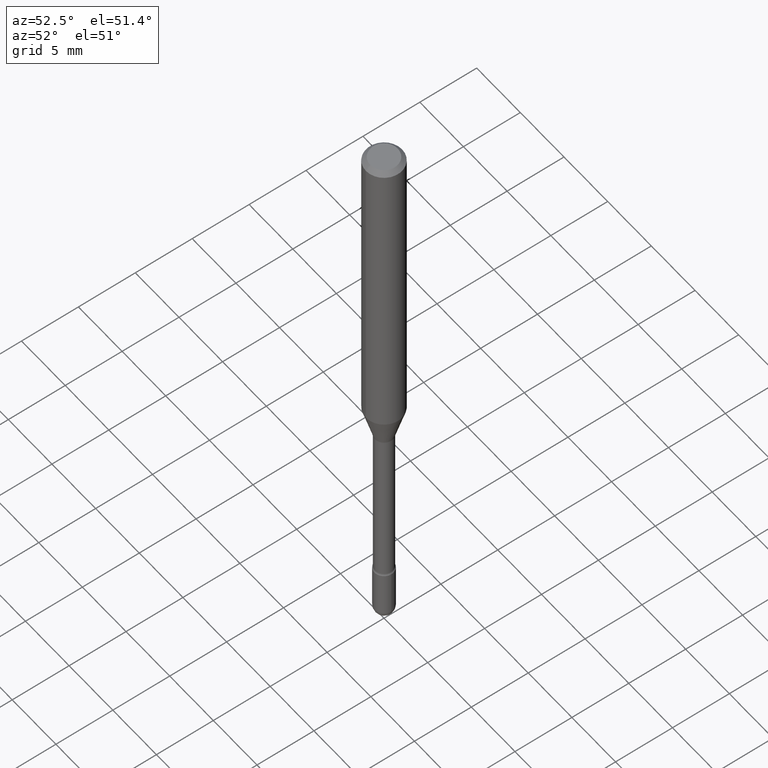
[diagram: clean part render]
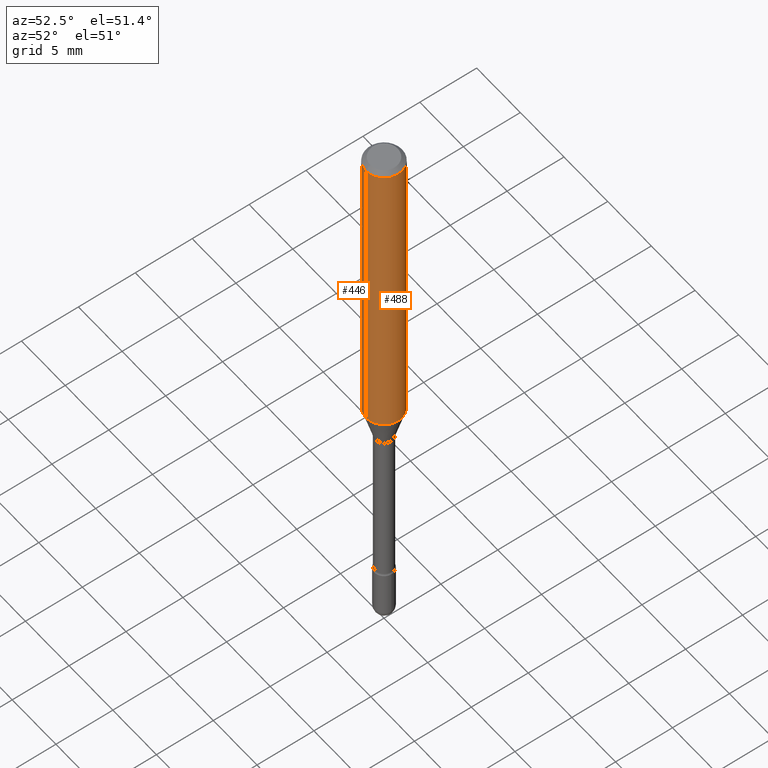
[diagram: same view with one multi-face feature highlighted, each face labeled with its STEP entity id]
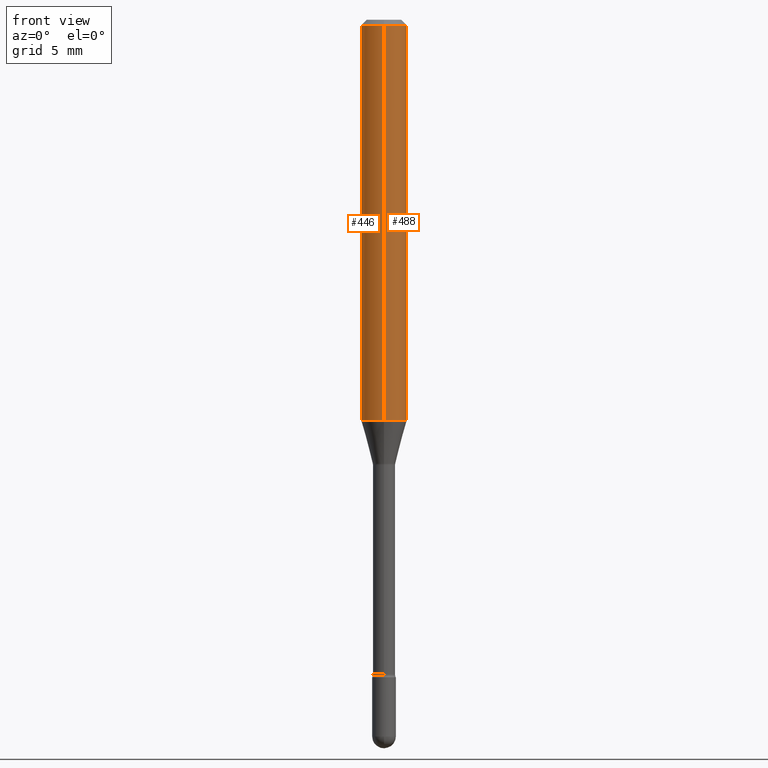
[diagram: same view with one multi-face feature highlighted, each face labeled with its STEP entity id]
A machine part, auxiliary view. The highlighted faces form ONE feature: a constant-radius fillet chain: 2 tangent blend faces with common blend radius 1.5875 mm. The faces share edges in the B-rep.
A second angle (front view) of the same feature is appended — it is thin or edge-on in the first view.
Their STEP definitions:
[1] entity #446 (Cylinder):
#8 = DIRECTION ( 'NONE',  ( -2.445516188486523811E-29, 3.491413484690726128E-15, 1.000000000000000000 ) ) ;
#36 = CARTESIAN_POINT ( 'NONE',  ( 4.440892098500897333E-16, 0.06249999999999995837, -0.01500000000000030129 ) ) ;
#46 = EDGE_LOOP ( 'NONE', ( #232, #265, #224, #436 ) ) ;
#68 = VERTEX_POINT ( 'NONE', #493 ) ;
#127 = DIRECTION ( 'NONE',  ( -2.445516188486523811E-29, 3.491413484690726128E-15, 1.000000000000000000 ) ) ;
#143 = AXIS2_PLACEMENT_3D ( 'NONE', #521, #127, #524 ) ;
#145 = EDGE_CURVE ( 'NONE', #317, #68, #485, .T. ) ;
#149 = CARTESIAN_POINT ( 'NONE',  ( -4.364351673553916201E-16, -0.06250000000000000000, 6.962867416844164462E-16 ) ) ;
#183 = VERTEX_POINT ( 'NONE', #257 ) ;
#184 = DIRECTION ( 'NONE',  ( -6.982962677686265922E-15, -1.000000000000000000, 4.370956789862821150E-15 ) ) ;
#185 = EDGE_CURVE ( 'NONE', #557, #317, #525, .T. ) ;
#193 = CARTESIAN_POINT ( 'NONE',  ( 4.440892098500895360E-16, 0.06249999999999617667, -1.100760976698174742 ) ) ;
#197 = AXIS2_PLACEMENT_3D ( 'NONE', #432, #8, #305 ) ;
#224 = ORIENTED_EDGE ( 'NONE', *, *, #426, .T. ) ;
#232 = ORIENTED_EDGE ( 'NONE', *, *, #185, .F. ) ;
#233 = DIRECTION ( 'NONE',  ( -2.445516188486523811E-29, 3.491413484690726128E-15, 1.000000000000000000 ) ) ;
#247 = EDGE_CURVE ( 'NONE', #557, #183, #293, .T. ) ;
#248 = CARTESIAN_POINT ( 'NONE',  ( 4.440892098500625669E-16, 0.06250000000000000000, 2.598600560980756803E-16 ) ) ;
#254 = AXIS2_PLACEMENT_3D ( 'NONE', #445, #233, #184 ) ;
#257 = CARTESIAN_POINT ( 'NONE',  ( -4.364351673553647002E-16, -0.06250000000000384415, -1.100760976698174076 ) ) ;
#265 = ORIENTED_EDGE ( 'NONE', *, *, #247, .T. ) ;
#293 = CIRCLE ( 'NONE', #254, 0.06250000000000000000 ) ;
#305 = DIRECTION ( 'NONE',  ( -6.982962677686265922E-15, -1.000000000000000000, 3.491413484690725733E-15 ) ) ;
#317 = VERTEX_POINT ( 'NONE', #36 ) ;
#323 = DIRECTION ( 'NONE',  ( -2.445516188486523811E-29, 3.491413484690726128E-15, 1.000000000000000000 ) ) ;
#368 = VECTOR ( 'NONE', #323, 39.37007874015748143 ) ;
#375 = VECTOR ( 'NONE', #422, 39.37007874015748143 ) ;
#422 = DIRECTION ( 'NONE',  ( -2.445516188486523811E-29, 3.491413484690726128E-15, 1.000000000000000000 ) ) ;
#426 = EDGE_CURVE ( 'NONE', #183, #68, #465, .T. ) ;
#432 = CARTESIAN_POINT ( 'NONE',  ( -1.169113584055446105E-44, 1.669184350826100908E-30, 4.780733988912460139E-16 ) ) ;
#436 = ORIENTED_EDGE ( 'NONE', *, *, #145, .F. ) ;
#445 = CARTESIAN_POINT ( 'NONE',  ( 2.691928788169622258E-29, -3.843211717465340284E-15, -1.100760976698174298 ) ) ;
#446 = ADVANCED_FACE ( 'NONE', ( #473 ), #518, .T. ) ;
#465 = LINE ( 'NONE', #149, #368 ) ;
#473 = FACE_OUTER_BOUND ( 'NONE', #46, .T. ) ;
#485 = CIRCLE ( 'NONE', #143, 0.06250000000000000000 ) ;
#493 = CARTESIAN_POINT ( 'NONE',  ( -4.364351673553912750E-16, -0.06250000000000005551, -0.01499999999999986587 ) ) ;
#518 = CYLINDRICAL_SURFACE ( 'NONE', #197, 0.06250000000000000000 ) ;
#521 = CARTESIAN_POINT ( 'NONE',  ( 3.668274282729805615E-31, -5.237120227036117935E-17, -0.01500000000000008271 ) ) ;
#524 = DIRECTION ( 'NONE',  ( -6.982962677686265922E-15, -1.000000000000000000, 3.483106191921935554E-15 ) ) ;
#525 = LINE ( 'NONE', #248, #375 ) ;
#557 = VERTEX_POINT ( 'NONE', #193 ) ;
[2] entity #488 (Cylinder):
#1 = CARTESIAN_POINT ( 'NONE',  ( -1.169113584055446105E-44, 1.669184350826100908E-30, 4.780733988912460139E-16 ) ) ;
#36 = CARTESIAN_POINT ( 'NONE',  ( 4.440892098500897333E-16, 0.06249999999999995837, -0.01500000000000030129 ) ) ;
#37 = DIRECTION ( 'NONE',  ( -6.982962677686265922E-15, -1.000000000000000000, 3.483106191921935554E-15 ) ) ;
#68 = VERTEX_POINT ( 'NONE', #493 ) ;
#82 = CARTESIAN_POINT ( 'NONE',  ( 3.668274282729805615E-31, -5.237120227036117935E-17, -0.01500000000000008271 ) ) ;
#91 = DIRECTION ( 'NONE',  ( -2.445516188486523811E-29, 3.491413484690726128E-15, 1.000000000000000000 ) ) ;
#105 = CIRCLE ( 'NONE', #188, 0.06250000000000000000 ) ;
#115 = EDGE_CURVE ( 'NONE', #183, #557, #176, .T. ) ;
#130 = ORIENTED_EDGE ( 'NONE', *, *, #426, .F. ) ;
#149 = CARTESIAN_POINT ( 'NONE',  ( -4.364351673553916201E-16, -0.06250000000000000000, 6.962867416844164462E-16 ) ) ;
#166 = DIRECTION ( 'NONE',  ( -2.445516188486523811E-29, 3.491413484690726128E-15, 1.000000000000000000 ) ) ;
#176 = CIRCLE ( 'NONE', #494, 0.06250000000000000000 ) ;
#178 = EDGE_CURVE ( 'NONE', #68, #317, #105, .T. ) ;
#181 = DIRECTION ( 'NONE',  ( -6.982962677686265922E-15, -1.000000000000000000, 3.491413484690725733E-15 ) ) ;
#183 = VERTEX_POINT ( 'NONE', #257 ) ;
#185 = EDGE_CURVE ( 'NONE', #557, #317, #525, .T. ) ;
#188 = AXIS2_PLACEMENT_3D ( 'NONE', #82, #91, #37 ) ;
#193 = CARTESIAN_POINT ( 'NONE',  ( 4.440892098500895360E-16, 0.06249999999999617667, -1.100760976698174742 ) ) ;
#234 = ORIENTED_EDGE ( 'NONE', *, *, #178, .F. ) ;
#244 = DIRECTION ( 'NONE',  ( -2.445516188486523811E-29, 3.491413484690726128E-15, 1.000000000000000000 ) ) ;
#248 = CARTESIAN_POINT ( 'NONE',  ( 4.440892098500625669E-16, 0.06250000000000000000, 2.598600560980756803E-16 ) ) ;
#256 = CYLINDRICAL_SURFACE ( 'NONE', #273, 0.06250000000000000000 ) ;
#257 = CARTESIAN_POINT ( 'NONE',  ( -4.364351673553647002E-16, -0.06250000000000384415, -1.100760976698174076 ) ) ;
#273 = AXIS2_PLACEMENT_3D ( 'NONE', #1, #166, #181 ) ;
#304 = DIRECTION ( 'NONE',  ( -6.982962677686265922E-15, -1.000000000000000000, 4.370956789862821150E-15 ) ) ;
#317 = VERTEX_POINT ( 'NONE', #36 ) ;
#323 = DIRECTION ( 'NONE',  ( -2.445516188486523811E-29, 3.491413484690726128E-15, 1.000000000000000000 ) ) ;
#368 = VECTOR ( 'NONE', #323, 39.37007874015748143 ) ;
#375 = VECTOR ( 'NONE', #422, 39.37007874015748143 ) ;
#381 = EDGE_LOOP ( 'NONE', ( #544, #466, #234, #130 ) ) ;
#422 = DIRECTION ( 'NONE',  ( -2.445516188486523811E-29, 3.491413484690726128E-15, 1.000000000000000000 ) ) ;
#426 = EDGE_CURVE ( 'NONE', #183, #68, #465, .T. ) ;
#456 = CARTESIAN_POINT ( 'NONE',  ( 2.691928788169622258E-29, -3.843211717465340284E-15, -1.100760976698174298 ) ) ;
#465 = LINE ( 'NONE', #149, #368 ) ;
#466 = ORIENTED_EDGE ( 'NONE', *, *, #185, .T. ) ;
#488 = ADVANCED_FACE ( 'NONE', ( #520 ), #256, .T. ) ;
#493 = CARTESIAN_POINT ( 'NONE',  ( -4.364351673553912750E-16, -0.06250000000000005551, -0.01499999999999986587 ) ) ;
#494 = AXIS2_PLACEMENT_3D ( 'NONE', #456, #244, #304 ) ;
#520 = FACE_OUTER_BOUND ( 'NONE', #381, .T. ) ;
#525 = LINE ( 'NONE', #248, #375 ) ;
#544 = ORIENTED_EDGE ( 'NONE', *, *, #115, .T. ) ;
#557 = VERTEX_POINT ( 'NONE', #193 ) ;